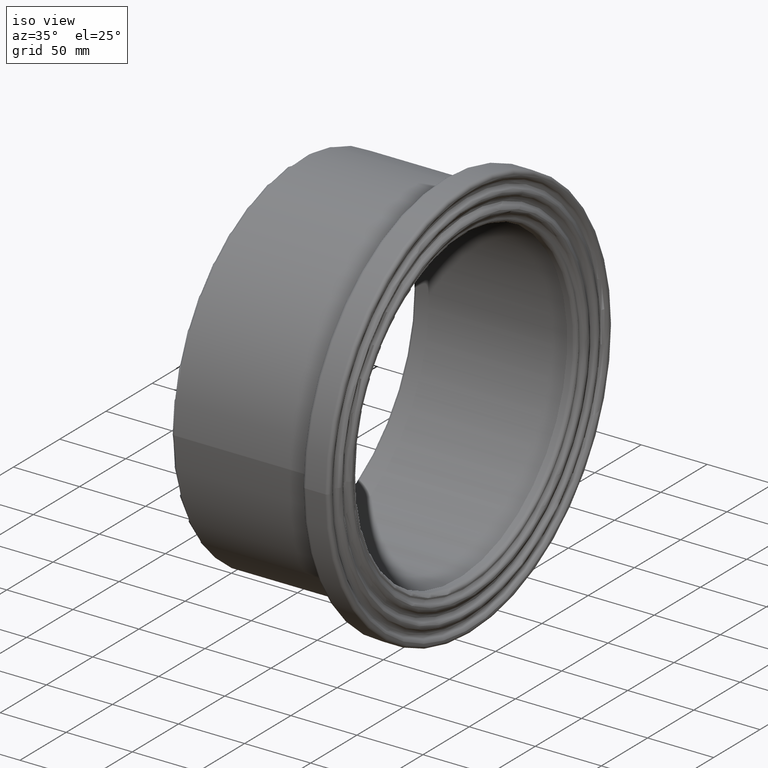
[diagram: clean part render]
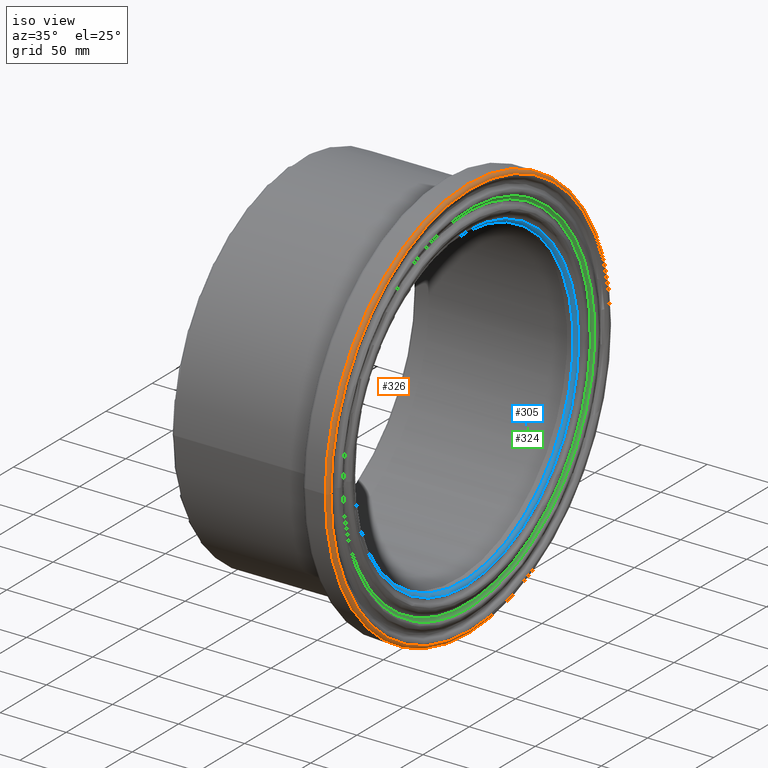
[diagram: same view with three faces highlighted in distinct colors, each labeled with its STEP entity id]
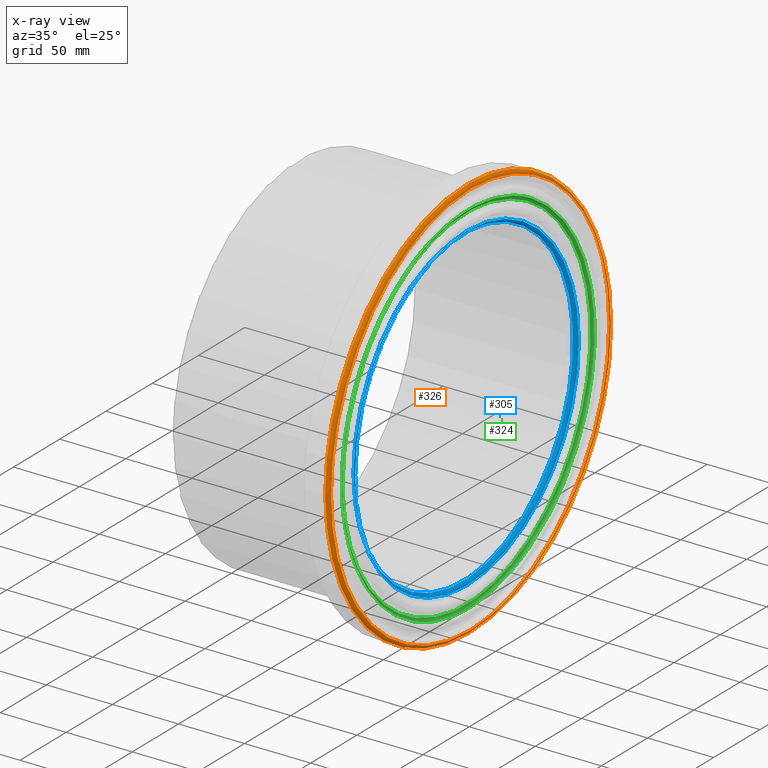
[diagram: x-ray of the same camera — body ghosted, the three highlighted faces saturated]
A machine part, iso view with three faces highlighted in distinct colors.
The next image is the same camera in x-ray (body ghosted, the three faces saturated) — at least one of them is partly hidden behind the body in this view.
Their STEP definitions:

[orange] entity #326 — the highlighted toroidal blend (fillet) surface has major radius 151 mm and minor (blend) radius 2.5 mm.
#59=FACE_BOUND('',#132,.T.);
#87=FACE_OUTER_BOUND('',#131,.T.);
#131=EDGE_LOOP('',(#281));
#132=EDGE_LOOP('',(#282));
#151=CIRCLE('',#347,151.);
#163=CIRCLE('',#370,153.5);
#177=VERTEX_POINT('',#1464);
#191=VERTEX_POINT('',#2683);
#207=EDGE_CURVE('',#177,#177,#151,.T.);
#224=EDGE_CURVE('',#191,#191,#163,.T.);
#281=ORIENTED_EDGE('',*,*,#207,.T.);
#282=ORIENTED_EDGE('',*,*,#224,.T.);
#302=TOROIDAL_SURFACE('',#369,151.,2.5);
#326=ADVANCED_FACE('',(#87,#59),#302,.T.);
#347=AXIS2_PLACEMENT_3D('',#1465,#407,#408);
#369=AXIS2_PLACEMENT_3D('',#2682,#451,#452);
#370=AXIS2_PLACEMENT_3D('',#2684,#453,#454);
#407=DIRECTION('center_axis',(-1.,0.,0.));
#408=DIRECTION('ref_axis',(0.,1.,6.12323399573677E-17));
#451=DIRECTION('center_axis',(-1.,0.,0.));
#452=DIRECTION('ref_axis',(0.,0.,1.));
#453=DIRECTION('center_axis',(1.,0.,0.));
#454=DIRECTION('ref_axis',(0.,1.,6.12323399573677E-17));
#1464=CARTESIAN_POINT('',(131.,-151.,9.24608333356252E-15));
#1465=CARTESIAN_POINT('Origin',(131.,0.,0.));
#2682=CARTESIAN_POINT('Origin',(128.5,0.,0.));
#2683=CARTESIAN_POINT('',(128.5,-153.5,-2.81974925503678E-14));
#2684=CARTESIAN_POINT('Origin',(128.5,0.,0.));

[blue] entity #305 — the highlighted toroidal blend (fillet) surface has major radius 121.25 mm and minor (blend) radius 2.5 mm.
#43=FACE_BOUND('',#95,.T.);
#66=FACE_OUTER_BOUND('',#94,.T.);
#94=EDGE_LOOP('',(#229));
#95=EDGE_LOOP('',(#230));
#145=CIRCLE('',#336,118.75);
#146=CIRCLE('',#337,121.25);
#168=VERTEX_POINT('',#477);
#169=VERTEX_POINT('',#479);
#196=EDGE_CURVE('',#168,#168,#145,.T.);
#197=EDGE_CURVE('',#169,#169,#146,.T.);
#229=ORIENTED_EDGE('',*,*,#196,.T.);
#230=ORIENTED_EDGE('',*,*,#197,.T.);
#295=TOROIDAL_SURFACE('',#335,121.25,2.5);
#305=ADVANCED_FACE('',(#66,#43),#295,.T.);
#335=AXIS2_PLACEMENT_3D('',#476,#383,#384);
#336=AXIS2_PLACEMENT_3D('',#478,#385,#386);
#337=AXIS2_PLACEMENT_3D('',#480,#387,#388);
#383=DIRECTION('center_axis',(-1.,0.,0.));
#384=DIRECTION('ref_axis',(0.,0.,1.));
#385=DIRECTION('center_axis',(-1.,0.,0.));
#386=DIRECTION('ref_axis',(0.,1.,6.12323399573676E-17));
#387=DIRECTION('center_axis',(1.,0.,0.));
#388=DIRECTION('ref_axis',(0.,1.,6.12323399573677E-17));
#476=CARTESIAN_POINT('Origin',(125.5,0.,0.));
#477=CARTESIAN_POINT('',(125.5,-118.75,7.27134036993741E-15));
#478=CARTESIAN_POINT('Origin',(125.5,0.,0.));
#479=CARTESIAN_POINT('',(128.,-121.25,-2.22732636594925E-14));
#480=CARTESIAN_POINT('Origin',(128.,0.,0.));

[green] entity #324 — the highlighted face is a freeform B-spline surface patch.
#19=B_SPLINE_SURFACE_WITH_KNOTS('',3,3,((#2313,#2314,#2315,#2316,#2317,
#2318,#2319,#2320,#2321,#2322,#2323,#2324,#2325,#2326,#2327,#2328,#2329,
#2330,#2331,#2332,#2333,#2334,#2335,#2336,#2337,#2338,#2339,#2340,#2341,
#2342,#2343,#2344,#2345,#2346,#2347,#2348,#2349,#2350,#2351,#2352,#2353,
#2354,#2355,#2356,#2357,#2358,#2359,#2360,#2361,#2362,#2363,#2364,#2365,
#2366,#2367,#2368,#2369,#2370,#2371,#2372,#2373),(#2374,#2375,#2376,#2377,
#2378,#2379,#2380,#2381,#2382,#2383,#2384,#2385,#2386,#2387,#2388,#2389,
#2390,#2391,#2392,#2393,#2394,#2395,#2396,#2397,#2398,#2399,#2400,#2401,
#2402,#2403,#2404,#2405,#2406,#2407,#2408,#2409,#2410,#2411,#2412,#2413,
#2414,#2415,#2416,#2417,#2418,#2419,#2420,#2421,#2422,#2423,#2424,#2425,
#2426,#2427,#2428,#2429,#2430,#2431,#2432,#2433,#2434),(#2435,#2436,#2437,
#2438,#2439,#2440,#2441,#2442,#2443,#2444,#2445,#2446,#2447,#2448,#2449,
#2450,#2451,#2452,#2453,#2454,#2455,#2456,#2457,#2458,#2459,#2460,#2461,
#2462,#2463,#2464,#2465,#2466,#2467,#2468,#2469,#2470,#2471,#2472,#2473,
#2474,#2475,#2476,#2477,#2478,#2479,#2480,#2481,#2482,#2483,#2484,#2485,
#2486,#2487,#2488,#2489,#2490,#2491,#2492,#2493,#2494,#2495),(#2496,#2497,
#2498,#2499,#2500,#2501,#2502,#2503,#2504,#2505,#2506,#2507,#2508,#2509,
#2510,#2511,#2512,#2513,#2514,#2515,#2516,#2517,#2518,#2519,#2520,#2521,
#2522,#2523,#2524,#2525,#2526,#2527,#2528,#2529,#2530,#2531,#2532,#2533,
#2534,#2535,#2536,#2537,#2538,#2539,#2540,#2541,#2542,#2543,#2544,#2545,
#2546,#2547,#2548,#2549,#2550,#2551,#2552,#2553,#2554,#2555,#2556),(#2557,
#2558,#2559,#2560,#2561,#2562,#2563,#2564,#2565,#2566,#2567,#2568,#2569,
#2570,#2571,#2572,#2573,#2574,#2575,#2576,#2577,#2578,#2579,#2580,#2581,
#2582,#2583,#2584,#2585,#2586,#2587,#2588,#2589,#2590,#2591,#2592,#2593,
#2594,#2595,#2596,#2597,#2598,#2599,#2600,#2601,#2602,#2603,#2604,#2605,
#2606,#2607,#2608,#2609,#2610,#2611,#2612,#2613,#2614,#2615,#2616,#2617)),
 .UNSPECIFIED.,.F.,.T.,.F.,(4,1,4),(4,1,1,1,1,1,1,1,1,1,1,1,1,1,1,1,1,1,
1,1,1,1,1,1,1,1,1,1,1,1,1,1,1,1,1,1,1,1,1,1,1,1,1,1,1,1,1,1,1,1,1,1,1,1,
1,1,1,1,4),(0.,0.571428571428571,1.),(41.8577500434216,43.3526696878296,
44.8475893322375,46.3425089766454,47.8374286210533,50.8272679098692,52.3221875542771,
53.817107198685,55.8103333912289,57.8035595837728,59.7967857763166,61.7900119688605,
62.7866250651325,63.7832381614044,65.7764643539483,68.7663036427641,69.7629167390361,
71.75614293158,72.7527560278519,73.7493691241239,75.7425953166677,77.7358215092116,
78.7324346054836,81.7222738942994,84.7121131831153,85.7087262793872,87.7019524719311,
88.2002590200671,88.947718842271,89.695178664475,92.6850179532908,95.6748572421066,
95.8617221976576,96.4223170643106,98.6646965309225,100.15961617533,101.654535819738,
102.02826573084,103.149455464146,104.644375108554,105.204969975207,106.139294752962,
106.513024664064,107.63421439737,109.129134041778,110.12574713805,111.620666782458,
113.613892975002,113.987622886104,114.548217752757,115.10881261941,116.603732263817,
119.593571552633,119.967301463735,121.088491197041,122.583410841449,124.078330485857,
124.452060396959,125.573250130265),.UNSPECIFIED.);
#32=B_SPLINE_CURVE_WITH_KNOTS('',3,(#2252,#2253,#2254,#2255,#2256,#2257,
#2258,#2259,#2260,#2261,#2262,#2263,#2264,#2265,#2266,#2267,#2268,#2269,
#2270,#2271,#2272,#2273,#2274,#2275,#2276,#2277,#2278,#2279,#2280,#2281,
#2282,#2283,#2284,#2285,#2286,#2287,#2288,#2289,#2290,#2291,#2292,#2293,
#2294,#2295,#2296,#2297,#2298,#2299,#2300,#2301,#2302,#2303,#2304,#2305,
#2306,#2307,#2308,#2309,#2310,#2311,#2312),.UNSPECIFIED.,.T.,.F.,(4,1,1,
1,1,1,1,1,1,1,1,1,1,1,1,1,1,1,1,1,1,1,1,1,1,1,1,1,1,1,1,1,1,1,1,1,1,1,1,
1,1,1,1,1,1,1,1,1,1,1,1,1,1,1,1,1,1,1,4),(-125.573250130265,-124.452060396959,
-124.078330485857,-122.583410841449,-121.088491197041,-119.967301463735,
-119.593571552633,-116.603732263817,-115.10881261941,-114.548217752757,
-113.987622886104,-113.613892975002,-111.620666782458,-110.12574713805,
-109.129134041778,-107.63421439737,-106.513024664064,-106.139294752962,
-105.204969975207,-104.644375108554,-103.149455464146,-102.02826573084,
-101.654535819738,-100.15961617533,-98.6646965309225,-96.4223170643106,
-95.8617221976576,-95.6748572421066,-92.6850179532908,-89.695178664475,
-88.947718842271,-88.2002590200671,-87.7019524719311,-85.7087262793872,
-84.7121131831153,-81.7222738942994,-78.7324346054836,-77.7358215092116,
-75.7425953166677,-73.7493691241239,-72.7527560278519,-71.75614293158,-69.7629167390361,
-68.7663036427641,-65.7764643539483,-63.7832381614044,-62.7866250651325,
-61.7900119688605,-59.7967857763166,-57.8035595837728,-55.8103333912289,
-53.817107198685,-52.3221875542771,-50.8272679098692,-47.8374286210533,
-46.3425089766454,-44.8475893322375,-43.3526696878296,-41.8577500434216),
 .UNSPECIFIED.);
#33=B_SPLINE_CURVE_WITH_KNOTS('',3,(#2620,#2621,#2622,#2623,#2624,#2625,
#2626,#2627,#2628,#2629,#2630,#2631,#2632,#2633,#2634,#2635,#2636,#2637,
#2638,#2639,#2640,#2641,#2642,#2643,#2644,#2645,#2646,#2647,#2648,#2649,
#2650,#2651,#2652,#2653,#2654,#2655,#2656,#2657,#2658,#2659,#2660,#2661,
#2662,#2663,#2664,#2665,#2666,#2667,#2668,#2669,#2670,#2671,#2672,#2673,
#2674,#2675,#2676,#2677,#2678,#2679,#2680),.UNSPECIFIED.,.T.,.F.,(4,1,1,
1,1,1,1,1,1,1,1,1,1,1,1,1,1,1,1,1,1,1,1,1,1,1,1,1,1,1,1,1,1,1,1,1,1,1,1,
1,1,1,1,1,1,1,1,1,1,1,1,1,1,1,1,1,1,1,4),(41.8577500434216,43.3526696878296,
44.8475893322375,46.3425089766454,47.8374286210533,50.8272679098692,52.3221875542771,
53.817107198685,55.8103333912289,57.8035595837728,59.7967857763166,61.7900119688605,
62.7866250651325,63.7832381614044,65.7764643539483,68.7663036427641,69.7629167390361,
71.75614293158,72.7527560278519,73.7493691241239,75.7425953166677,77.7358215092116,
78.7324346054836,81.7222738942994,84.7121131831153,85.7087262793872,87.7019524719311,
88.2002590200671,88.947718842271,89.695178664475,92.6850179532908,95.6748572421066,
95.8617221976576,96.4223170643106,98.6646965309225,100.15961617533,101.654535819738,
102.02826573084,103.149455464146,104.644375108554,105.204969975207,106.139294752962,
106.513024664064,107.63421439737,109.129134041778,110.12574713805,111.620666782458,
113.613892975002,113.987622886104,114.548217752757,115.10881261941,116.603732263817,
119.593571552633,119.967301463735,121.088491197041,122.583410841449,124.078330485857,
124.452060396959,125.573250130265),.UNSPECIFIED.);
#85=FACE_OUTER_BOUND('',#128,.T.);
#128=EDGE_LOOP('',(#275,#276,#277,#278));
#162=CIRCLE('',#367,2.50000000000001);
#189=VERTEX_POINT('',#2251);
#190=VERTEX_POINT('',#2618);
#221=EDGE_CURVE('',#189,#189,#32,.T.);
#222=EDGE_CURVE('',#190,#189,#162,.T.);
#223=EDGE_CURVE('',#190,#190,#33,.T.);
#275=ORIENTED_EDGE('',*,*,#222,.T.);
#276=ORIENTED_EDGE('',*,*,#221,.T.);
#277=ORIENTED_EDGE('',*,*,#222,.F.);
#278=ORIENTED_EDGE('',*,*,#223,.T.);
#324=ADVANCED_FACE('',(#85),#19,.T.);
#367=AXIS2_PLACEMENT_3D('',#2619,#447,#448);
#447=DIRECTION('center_axis',(0.,0.00081182891062679,-0.999999670466856));
#448=DIRECTION('ref_axis',(-0.399999999999997,-0.916514836969054,-0.000744053486860162));
#2251=CARTESIAN_POINT('',(128.,-134.042380133623,-0.108819515300807));
#2252=CARTESIAN_POINT('Ctrl Pts',(128.,-134.042396806544,-0.110004775458605));
#2253=CARTESIAN_POINT('Ctrl Pts',(128.,-134.045770195486,3.63596688620978));
#2254=CARTESIAN_POINT('Ctrl Pts',(128.,-133.840932653224,8.61650060382999));
#2255=CARTESIAN_POINT('Ctrl Pts',(128.,-132.87062718772,18.5981948267424));
#2256=CARTESIAN_POINT('Ctrl Pts',(128.,-130.985447689726,29.7729122756928));
#2257=CARTESIAN_POINT('Ctrl Pts',(128.,-127.155110948706,43.0976685465278));
#2258=CARTESIAN_POINT('Ctrl Pts',(128.,-123.460639573746,52.3900811576101));
#2259=CARTESIAN_POINT('Ctrl Pts',(128.,-117.175105432899,65.9713295033879));
#2260=CARTESIAN_POINT('Ctrl Pts',(128.,-108.412795269691,79.9560669111456));
#2261=CARTESIAN_POINT('Ctrl Pts',(128.,-97.1105871375329,92.5972989510736));
#2262=CARTESIAN_POINT('Ctrl Pts',(128.,-90.8216059421236,98.6377260264684));
#2263=CARTESIAN_POINT('Ctrl Pts',(128.,-87.0704552680871,101.948550305349));
#2264=CARTESIAN_POINT('Ctrl Pts',(128.,-79.4869613414157,108.185310942699));
#2265=CARTESIAN_POINT('Ctrl Pts',(128.,-68.7119140789402,115.545804460043));
#2266=CARTESIAN_POINT('Ctrl Pts',(128.,-55.2412775281228,122.345193450153));
#2267=CARTESIAN_POINT('Ctrl Pts',(128.,-42.8727580370688,127.208055099489));
#2268=CARTESIAN_POINT('Ctrl Pts',(128.,-31.1929405433235,130.588536608182));
#2269=CARTESIAN_POINT('Ctrl Pts',(128.,-21.28485606209,132.418885331816));
#2270=CARTESIAN_POINT('Ctrl Pts',(128.,-13.1829912426797,133.450654100185));
#2271=CARTESIAN_POINT('Ctrl Pts',(128.,-6.91778686165765,133.93527681819));
#2272=CARTESIAN_POINT('Ctrl Pts',(128.,3.06193922022791,134.147893750257));
#2273=CARTESIAN_POINT('Ctrl Pts',(128.,13.6755773685519,133.561678807177));
#2274=CARTESIAN_POINT('Ctrl Pts',(128.,23.6365828512167,132.019737102123));
#2275=CARTESIAN_POINT('Ctrl Pts',(128.,33.4723418236208,129.925062798654));
#2276=CARTESIAN_POINT('Ctrl Pts',(128.,44.3729614263372,126.780082946195));
#2277=CARTESIAN_POINT('Ctrl Pts',(128.,60.5002062033004,120.107980033134));
#2278=CARTESIAN_POINT('Ctrl Pts',(128.,73.0193004211953,112.742308750468));
#2279=CARTESIAN_POINT('Ctrl Pts',(128.,81.1022204579567,106.748106291229));
#2280=CARTESIAN_POINT('Ctrl Pts',(128.,90.975198043422,98.978631353995));
#2281=CARTESIAN_POINT('Ctrl Pts',(128.,105.593111445086,84.3914026861268));
#2282=CARTESIAN_POINT('Ctrl Pts',(128.,117.793961325987,65.0130442939763));
#2283=CARTESIAN_POINT('Ctrl Pts',(128.,123.894930341947,51.3334492799566));
#2284=CARTESIAN_POINT('Ctrl Pts',(128.,126.274183596108,45.1181891306844));
#2285=CARTESIAN_POINT('Ctrl Pts',(128.,129.672172135462,34.805445015328));
#2286=CARTESIAN_POINT('Ctrl Pts',(128.,132.300385889501,23.3025404323761));
#2287=CARTESIAN_POINT('Ctrl Pts',(128.,134.540041393079,3.34770823180396));
#2288=CARTESIAN_POINT('Ctrl Pts',(128.,133.6671782023,-20.0488374407319));
#2289=CARTESIAN_POINT('Ctrl Pts',(128.,127.617528001759,-42.7311712646745));
#2290=CARTESIAN_POINT('Ctrl Pts',(128.,119.660231237079,-61.0411926292766));
#2291=CARTESIAN_POINT('Ctrl Pts',(128.,111.323320200756,-75.5676429604876));
#2292=CARTESIAN_POINT('Ctrl Pts',(128.,100.829195686642,-88.767463041164));
#2293=CARTESIAN_POINT('Ctrl Pts',(128.,91.4120856759479,-98.204239185521));
#2294=CARTESIAN_POINT('Ctrl Pts',(128.,81.3368445823764,-106.910395544264));
#2295=CARTESIAN_POINT('Ctrl Pts',(128.,70.2237995046921,-114.52397053007));
#2296=CARTESIAN_POINT('Ctrl Pts',(128.,52.4361812606862,-123.946000474479));
#2297=CARTESIAN_POINT('Ctrl Pts',(128.,33.5230036341493,-130.603890048496));
#2298=CARTESIAN_POINT('Ctrl Pts',(128.,13.5273673315771,-133.656190189087));
#2299=CARTESIAN_POINT('Ctrl Pts',(128.,0.155140283754767,-134.164901730926));
#2300=CARTESIAN_POINT('Ctrl Pts',(128.,-13.1245988394816,-133.689515016061));
#2301=CARTESIAN_POINT('Ctrl Pts',(128.,-29.7597412024202,-131.219226065137));
#2302=CARTESIAN_POINT('Ctrl Pts',(128.,-49.044247412749,-125.28099455662));
#2303=CARTESIAN_POINT('Ctrl Pts',(128.,-67.0542090644284,-116.64020742229));
#2304=CARTESIAN_POINT('Ctrl Pts',(128.,-82.4064222522247,-106.219534483969));
#2305=CARTESIAN_POINT('Ctrl Pts',(128.,-94.8869711391003,-95.064187400342));
#2306=CARTESIAN_POINT('Ctrl Pts',(128.,-108.223523013044,-80.206311024766));
#2307=CARTESIAN_POINT('Ctrl Pts',(128.,-119.076680496132,-62.9759832380937));
#2308=CARTESIAN_POINT('Ctrl Pts',(128.,-126.724452921231,-44.519849657769));
#2309=CARTESIAN_POINT('Ctrl Pts',(128.,-130.920937517338,-30.0644831455729));
#2310=CARTESIAN_POINT('Ctrl Pts',(128.,-133.470675532955,-15.1314785277439));
#2311=CARTESIAN_POINT('Ctrl Pts',(128.,-134.037898954623,-5.10463365768324));
#2312=CARTESIAN_POINT('Ctrl Pts',(128.,-134.042396806544,-0.110004775458676));
#2313=CARTESIAN_POINT('Ctrl Pts',(128.,-134.042396806544,-0.110004775458605));
#2314=CARTESIAN_POINT('Ctrl Pts',(128.,-134.037898954623,-5.10463365768317));
#2315=CARTESIAN_POINT('Ctrl Pts',(128.,-133.470675532955,-15.1314785277439));
#2316=CARTESIAN_POINT('Ctrl Pts',(128.,-130.920937517338,-30.0644831455729));
#2317=CARTESIAN_POINT('Ctrl Pts',(128.,-126.724452921231,-44.519849657769));
#2318=CARTESIAN_POINT('Ctrl Pts',(128.,-119.076680496132,-62.9759832380937));
#2319=CARTESIAN_POINT('Ctrl Pts',(128.,-108.223523013044,-80.206311024766));
#2320=CARTESIAN_POINT('Ctrl Pts',(128.,-94.8869711391003,-95.064187400342));
#2321=CARTESIAN_POINT('Ctrl Pts',(128.,-82.4064222522247,-106.219534483969));
#2322=CARTESIAN_POINT('Ctrl Pts',(128.,-67.0542090644284,-116.64020742229));
#2323=CARTESIAN_POINT('Ctrl Pts',(128.,-49.044247412749,-125.28099455662));
#2324=CARTESIAN_POINT('Ctrl Pts',(128.,-29.7597412024202,-131.219226065137));
#2325=CARTESIAN_POINT('Ctrl Pts',(128.,-13.1245988394816,-133.689515016061));
#2326=CARTESIAN_POINT('Ctrl Pts',(128.,0.155140283754767,-134.164901730926));
#2327=CARTESIAN_POINT('Ctrl Pts',(128.,13.5273673315771,-133.656190189087));
#2328=CARTESIAN_POINT('Ctrl Pts',(128.,33.5230036341493,-130.603890048496));
#2329=CARTESIAN_POINT('Ctrl Pts',(128.,52.4361812606862,-123.946000474479));
#2330=CARTESIAN_POINT('Ctrl Pts',(128.,70.2237995046921,-114.52397053007));
#2331=CARTESIAN_POINT('Ctrl Pts',(128.,81.3368445823764,-106.910395544264));
#2332=CARTESIAN_POINT('Ctrl Pts',(128.,91.4120856759479,-98.204239185521));
#2333=CARTESIAN_POINT('Ctrl Pts',(128.,100.829195686642,-88.767463041164));
#2334=CARTESIAN_POINT('Ctrl Pts',(128.,111.323320200756,-75.5676429604876));
#2335=CARTESIAN_POINT('Ctrl Pts',(128.,119.660231237079,-61.0411926292766));
#2336=CARTESIAN_POINT('Ctrl Pts',(128.,127.617528001759,-42.7311712646745));
#2337=CARTESIAN_POINT('Ctrl Pts',(128.,133.6671782023,-20.0488374407319));
#2338=CARTESIAN_POINT('Ctrl Pts',(128.,134.540041393079,3.34770823180396));
#2339=CARTESIAN_POINT('Ctrl Pts',(128.,132.300385889501,23.3025404323761));
#2340=CARTESIAN_POINT('Ctrl Pts',(128.,129.672172135462,34.805445015328));
#2341=CARTESIAN_POINT('Ctrl Pts',(128.,126.274183596108,45.1181891306844));
#2342=CARTESIAN_POINT('Ctrl Pts',(128.,123.894930341947,51.3334492799566));
#2343=CARTESIAN_POINT('Ctrl Pts',(128.,117.793961325987,65.0130442939763));
#2344=CARTESIAN_POINT('Ctrl Pts',(128.,105.593111445086,84.3914026861268));
#2345=CARTESIAN_POINT('Ctrl Pts',(128.,90.975198043422,98.978631353995));
#2346=CARTESIAN_POINT('Ctrl Pts',(128.,81.1022204579567,106.748106291229));
#2347=CARTESIAN_POINT('Ctrl Pts',(128.,73.0193004211953,112.742308750468));
#2348=CARTESIAN_POINT('Ctrl Pts',(128.,60.5002062033004,120.107980033134));
#2349=CARTESIAN_POINT('Ctrl Pts',(128.,44.3729614263372,126.780082946195));
#2350=CARTESIAN_POINT('Ctrl Pts',(128.,33.4723418236208,129.925062798654));
#2351=CARTESIAN_POINT('Ctrl Pts',(128.,23.6365828512167,132.019737102123));
#2352=CARTESIAN_POINT('Ctrl Pts',(128.,13.6755773685519,133.561678807177));
#2353=CARTESIAN_POINT('Ctrl Pts',(128.,3.06193922022791,134.147893750257));
#2354=CARTESIAN_POINT('Ctrl Pts',(128.,-6.91778686165765,133.93527681819));
#2355=CARTESIAN_POINT('Ctrl Pts',(128.,-13.1829912426797,133.450654100185));
#2356=CARTESIAN_POINT('Ctrl Pts',(128.,-21.28485606209,132.418885331816));
#2357=CARTESIAN_POINT('Ctrl Pts',(128.,-31.1929405433235,130.588536608182));
#2358=CARTESIAN_POINT('Ctrl Pts',(128.,-42.8727580370688,127.208055099489));
#2359=CARTESIAN_POINT('Ctrl Pts',(128.,-55.2412775281228,122.345193450153));
#2360=CARTESIAN_POINT('Ctrl Pts',(128.,-68.7119140789402,115.545804460043));
#2361=CARTESIAN_POINT('Ctrl Pts',(128.,-79.4869613414157,108.185310942699));
#2362=CARTESIAN_POINT('Ctrl Pts',(128.,-87.0704552680871,101.948550305349));
#2363=CARTESIAN_POINT('Ctrl Pts',(128.,-90.8216059421236,98.6377260264684));
#2364=CARTESIAN_POINT('Ctrl Pts',(128.,-97.1105871375329,92.5972989510736));
#2365=CARTESIAN_POINT('Ctrl Pts',(128.,-108.412795269691,79.9560669111456));
#2366=CARTESIAN_POINT('Ctrl Pts',(128.,-117.175105432899,65.9713295033879));
#2367=CARTESIAN_POINT('Ctrl Pts',(128.,-123.460639573746,52.3900811576101));
#2368=CARTESIAN_POINT('Ctrl Pts',(128.,-127.155110948706,43.0976685465278));
#2369=CARTESIAN_POINT('Ctrl Pts',(128.,-130.985447689726,29.7729122756928));
#2370=CARTESIAN_POINT('Ctrl Pts',(128.,-132.87062718772,18.5981948267424));
#2371=CARTESIAN_POINT('Ctrl Pts',(128.,-133.840932653224,8.61650060382999));
#2372=CARTESIAN_POINT('Ctrl Pts',(128.,-134.045770195486,3.63596688620978));
#2373=CARTESIAN_POINT('Ctrl Pts',(128.,-134.042396806544,-0.110004775458605));
#2374=CARTESIAN_POINT('Ctrl Pts',(128.,-134.594434812956,-0.110461162633312));
#2375=CARTESIAN_POINT('Ctrl Pts',(128.,-134.589918405156,-5.12565996918277));
#2376=CARTESIAN_POINT('Ctrl Pts',(128.,-134.020359307645,-15.1937938875339));
#2377=CARTESIAN_POINT('Ctrl Pts',(128.,-131.460120665862,-30.1882976234241));
#2378=CARTESIAN_POINT('Ctrl Pts',(128.,-127.246353754527,-44.7031979749576));
#2379=CARTESIAN_POINT('Ctrl Pts',(128.,-119.567081339409,-63.2353473507036));
#2380=CARTESIAN_POINT('Ctrl Pts',(128.,-108.669231992758,-80.5366269645552));
#2381=CARTESIAN_POINT('Ctrl Pts',(128.,-95.2777514225551,-95.4556995337113));
#2382=CARTESIAN_POINT('Ctrl Pts',(128.,-82.7458021017108,-106.656987931511));
#2383=CARTESIAN_POINT('Ctrl Pts',(128.,-67.3303665957968,-117.120575388676));
#2384=CARTESIAN_POINT('Ctrl Pts',(128.,-49.246226460218,-125.796951628199));
#2385=CARTESIAN_POINT('Ctrl Pts',(128.,-29.8823033675171,-131.759636543865));
#2386=CARTESIAN_POINT('Ctrl Pts',(128.,-13.1786522733384,-134.240100292508));
#2387=CARTESIAN_POINT('Ctrl Pts',(128.,0.155777692276861,-134.717443890255));
#2388=CARTESIAN_POINT('Ctrl Pts',(128.,13.5830795875951,-134.206638301411));
#2389=CARTESIAN_POINT('Ctrl Pts',(128.,33.6610687771271,-131.141764963593));
#2390=CARTESIAN_POINT('Ctrl Pts',(128.,52.6521270511417,-124.456460853311));
#2391=CARTESIAN_POINT('Ctrl Pts',(128.,70.513014335432,-114.995620726516));
#2392=CARTESIAN_POINT('Ctrl Pts',(128.,81.671813216076,-107.350699303088));
#2393=CARTESIAN_POINT('Ctrl Pts',(128.,91.7885592806251,-98.6086789230373));
#2394=CARTESIAN_POINT('Ctrl Pts',(128.,101.244446957129,-89.1330439382535));
#2395=CARTESIAN_POINT('Ctrl Pts',(128.,111.78179274693,-75.8788586041971));
#2396=CARTESIAN_POINT('Ctrl Pts',(128.,120.15303776602,-61.2925851655418));
#2397=CARTESIAN_POINT('Ctrl Pts',(128.,128.143106685282,-42.9071508869083));
#2398=CARTESIAN_POINT('Ctrl Pts',(128.,134.217670632058,-20.1314125883368));
#2399=CARTESIAN_POINT('Ctrl Pts',(128.,135.094128797481,3.36150128582284));
#2400=CARTESIAN_POINT('Ctrl Pts',(128.,132.845250430268,23.3985044600311));
#2401=CARTESIAN_POINT('Ctrl Pts',(128.,130.206211461743,34.9487882996147));
#2402=CARTESIAN_POINT('Ctrl Pts',(128.,126.79423060482,45.3039999181129));
#2403=CARTESIAN_POINT('Ctrl Pts',(128.,124.40517614348,51.5448618411736));
#2404=CARTESIAN_POINT('Ctrl Pts',(128.,118.279082037487,65.2807948627832));
#2405=CARTESIAN_POINT('Ctrl Pts',(128.,106.02798409988,84.7389567005983));
#2406=CARTESIAN_POINT('Ctrl Pts',(128.,91.3498703651655,99.38626345237));
#2407=CARTESIAN_POINT('Ctrl Pts',(128.,81.4362299438716,107.18773611189));
#2408=CARTESIAN_POINT('Ctrl Pts',(128.,73.3200138837552,113.206630246278));
#2409=CARTESIAN_POINT('Ctrl Pts',(128.,60.7493775014278,120.60262645878));
#2410=CARTESIAN_POINT('Ctrl Pts',(128.,44.5557014273403,127.302214262235));
#2411=CARTESIAN_POINT('Ctrl Pts',(128.,33.6101987928727,130.460142431061));
#2412=CARTESIAN_POINT('Ctrl Pts',(128.,23.7339267054232,132.563445663145));
#2413=CARTESIAN_POINT('Ctrl Pts',(128.,13.7318979034324,134.111736330377));
#2414=CARTESIAN_POINT('Ctrl Pts',(128.,3.07455363455794,134.700366894082));
#2415=CARTESIAN_POINT('Ctrl Pts',(128.,-6.94628173964139,134.486873061302));
#2416=CARTESIAN_POINT('Ctrl Pts',(128.,-13.2372814995961,134.000255867062));
#2417=CARTESIAN_POINT('Ctrl Pts',(128.,-21.3725183134484,132.964236409687));
#2418=CARTESIAN_POINT('Ctrl Pts',(128.,-31.3214070310093,131.126350098631));
#2419=CARTESIAN_POINT('Ctrl Pts',(128.,-43.0493200773614,127.731948057067));
#2420=CARTESIAN_POINT('Ctrl Pts',(128.,-55.4687860079274,122.849056652159));
#2421=CARTESIAN_POINT('Ctrl Pts',(128.,-68.9948967821989,116.021665549252));
#2422=CARTESIAN_POINT('Ctrl Pts',(128.,-79.8143169506371,108.630861221665));
#2423=CARTESIAN_POINT('Ctrl Pts',(128.,-87.429040667454,102.368417337859));
#2424=CARTESIAN_POINT('Ctrl Pts',(128.,-91.1956457158025,99.0439521418355));
#2425=CARTESIAN_POINT('Ctrl Pts',(128.,-97.5105289723043,92.9786483514629));
#2426=CARTESIAN_POINT('Ctrl Pts',(128.,-108.859282288944,80.285350752476));
#2427=CARTESIAN_POINT('Ctrl Pts',(128.,-117.65767389293,66.2430340602316));
#2428=CARTESIAN_POINT('Ctrl Pts',(128.,-123.969098394949,52.605841597043));
#2429=CARTESIAN_POINT('Ctrl Pts',(128.,-127.678784921276,43.2751617764169));
#2430=CARTESIAN_POINT('Ctrl Pts',(128.,-131.524896052128,29.895526370397));
#2431=CARTESIAN_POINT('Ctrl Pts',(128.,-133.417839007921,18.6747937005199));
#2432=CARTESIAN_POINT('Ctrl Pts',(128.,-134.39214117089,8.6519856343586));
#2433=CARTESIAN_POINT('Ctrl Pts',(128.,-134.597822118806,3.65093794227874));
#2434=CARTESIAN_POINT('Ctrl Pts',(128.,-134.594434812956,-0.110461162633312));
#2435=CARTESIAN_POINT('Ctrl Pts',(128.332455574358,-135.557291704872,-0.111247189840472));
#2436=CARTESIAN_POINT('Ctrl Pts',(128.332455574358,-135.552743027793,-5.16232338907633));
#2437=CARTESIAN_POINT('Ctrl Pts',(128.332455574358,-134.979108978417,-15.3024890547301));
#2438=CARTESIAN_POINT('Ctrl Pts',(128.332455574358,-132.40055477579,-30.4042608440699));
#2439=CARTESIAN_POINT('Ctrl Pts',(128.332455574358,-128.156643045159,-45.0229960042833));
#2440=CARTESIAN_POINT('Ctrl Pts',(128.332455574358,-120.422439340079,-63.6877120571345));
#2441=CARTESIAN_POINT('Ctrl Pts',(128.332455574358,-109.446622335721,-81.1127725529709));
#2442=CARTESIAN_POINT('Ctrl Pts',(128.332455574358,-95.9593468466515,-96.1385654473985));
#2443=CARTESIAN_POINT('Ctrl Pts',(128.332455574358,-83.3377478452992,-107.419986080706));
#2444=CARTESIAN_POINT('Ctrl Pts',(128.332455574358,-67.8120289579411,-117.958429842747));
#2445=CARTESIAN_POINT('Ctrl Pts',(128.332455574358,-49.5985273426442,-126.696871044211));
#2446=CARTESIAN_POINT('Ctrl Pts',(128.332455574358,-30.0960741594777,-132.70221474188));
#2447=CARTESIAN_POINT('Ctrl Pts',(128.332455574358,-13.272927619847,-135.200421642209));
#2448=CARTESIAN_POINT('Ctrl Pts',(128.332455574358,0.156893989499437,-135.681181222308));
#2449=CARTESIAN_POINT('Ctrl Pts',(128.332455574358,13.6802480280183,-135.166720171433));
#2450=CARTESIAN_POINT('Ctrl Pts',(128.332455574358,33.9018664367352,-132.079924772938));
#2451=CARTESIAN_POINT('Ctrl Pts',(128.332455574358,53.028796124736,-125.346789056075));
#2452=CARTESIAN_POINT('Ctrl Pts',(128.332455574358,71.0174399676076,-115.818276626604));
#2453=CARTESIAN_POINT('Ctrl Pts',(128.332455574358,82.2560837599928,-108.11865374301));
#2454=CARTESIAN_POINT('Ctrl Pts',(128.332455574358,92.4451885497659,-99.3141059313359));
#2455=CARTESIAN_POINT('Ctrl Pts',(128.332455574358,101.968728434023,-89.770677698857));
#2456=CARTESIAN_POINT('Ctrl Pts',(128.332455574358,112.58145285413,-76.4216792121673));
#2457=CARTESIAN_POINT('Ctrl Pts',(128.332455574358,121.012584558059,-61.7310560211934));
#2458=CARTESIAN_POINT('Ctrl Pts',(128.332455574358,129.059811354838,-43.2141032102031));
#2459=CARTESIAN_POINT('Ctrl Pts',(128.332455574358,135.177832595251,-20.2754200344413));
#2460=CARTESIAN_POINT('Ctrl Pts',(128.332455574358,136.060560499243,3.3855412826107));
#2461=CARTESIAN_POINT('Ctrl Pts',(128.332455574358,133.795593063584,23.5658978224865));
#2462=CARTESIAN_POINT('Ctrl Pts',(128.332455574358,131.137676560935,35.1988023111507));
#2463=CARTESIAN_POINT('Ctrl Pts',(128.332455574358,127.701284815674,45.6280980967998));
#2464=CARTESIAN_POINT('Ctrl Pts',(128.332455574358,125.295142786596,51.9135994845505));
#2465=CARTESIAN_POINT('Ctrl Pts',(128.332455574358,119.125222743873,65.7477959010921));
#2466=CARTESIAN_POINT('Ctrl Pts',(128.332455574358,106.786483682979,85.3451619360978));
#2467=CARTESIAN_POINT('Ctrl Pts',(128.332455574358,92.0033638747935,100.097249217198));
#2468=CARTESIAN_POINT('Ctrl Pts',(128.332455574358,82.0188062659379,107.954531719629));
#2469=CARTESIAN_POINT('Ctrl Pts',(128.332455574358,73.8445380396575,114.016477035878));
#2470=CARTESIAN_POINT('Ctrl Pts',(128.332455574358,61.183953929348,121.465394638461));
#2471=CARTESIAN_POINT('Ctrl Pts',(128.332455574358,44.8744485230619,128.212901442812));
#2472=CARTESIAN_POINT('Ctrl Pts',(128.332455574358,33.8506319511838,131.393425587432));
#2473=CARTESIAN_POINT('Ctrl Pts',(128.332455574358,23.9037144546826,133.511772532207));
#2474=CARTESIAN_POINT('Ctrl Pts',(128.332455574358,13.8301335913998,135.071140989537));
#2475=CARTESIAN_POINT('Ctrl Pts',(128.332455574358,3.09654304425006,135.663980772647));
#2476=CARTESIAN_POINT('Ctrl Pts',(128.332455574358,-6.99596782465762,135.448961235171));
#2477=CARTESIAN_POINT('Ctrl Pts',(128.332455574358,-13.331980844552,134.95886116182));
#2478=CARTESIAN_POINT('Ctrl Pts',(128.332455574358,-21.5254084606889,133.915432103911));
#2479=CARTESIAN_POINT('Ctrl Pts',(128.332455574358,-31.5454705068667,132.064397372957));
#2480=CARTESIAN_POINT('Ctrl Pts',(128.332455574358,-43.3572903096786,128.645710593129));
#2481=CARTESIAN_POINT('Ctrl Pts',(128.332455574358,-55.8655919996206,123.727891418809));
#2482=CARTESIAN_POINT('Ctrl Pts',(128.332455574358,-69.4884691702927,116.851658293209));
#2483=CARTESIAN_POINT('Ctrl Pts',(128.332455574358,-80.3852925162464,109.407978731855));
#2484=CARTESIAN_POINT('Ctrl Pts',(128.332455574358,-88.054492609322,103.10073213877));
#2485=CARTESIAN_POINT('Ctrl Pts',(128.332455574358,-91.8480359346975,99.7524915998606));
#2486=CARTESIAN_POINT('Ctrl Pts',(128.332455574358,-98.2080923466505,93.6437979534417));
#2487=CARTESIAN_POINT('Ctrl Pts',(128.332455574358,-109.638034029111,80.859700643477));
#2488=CARTESIAN_POINT('Ctrl Pts',(128.332455574358,-118.49937365326,66.7169094692075));
#2489=CARTESIAN_POINT('Ctrl Pts',(128.332455574358,-124.855943443941,52.982173916003));
#2490=CARTESIAN_POINT('Ctrl Pts',(128.332455574358,-128.59216831785,43.584741468437));
#2491=CARTESIAN_POINT('Ctrl Pts',(128.332455574358,-132.465794130207,30.1093946519841));
#2492=CARTESIAN_POINT('Ctrl Pts',(128.332455574358,-134.372279297828,18.8083833045187));
#2493=CARTESIAN_POINT('Ctrl Pts',(128.332455574358,-135.353550629052,8.71388118362897));
#2494=CARTESIAN_POINT('Ctrl Pts',(128.332455574358,-135.56070321268,3.67705995958639));
#2495=CARTESIAN_POINT('Ctrl Pts',(128.332455574358,-135.557291704872,-0.111247189840472));
#2496=CARTESIAN_POINT('Ctrl Pts',(129.120536716283,-136.168073070651,-0.111751807306495));
#2497=CARTESIAN_POINT('Ctrl Pts',(129.120536716283,-136.163503866331,-5.18558680091462));
#2498=CARTESIAN_POINT('Ctrl Pts',(129.120536716283,-135.587285560839,-15.3714356916707));
#2499=CARTESIAN_POINT('Ctrl Pts',(129.120536716282,-132.997113324177,-30.5412509034174));
#2500=CARTESIAN_POINT('Ctrl Pts',(129.120536716283,-128.734080194176,-45.2258548965548));
#2501=CARTESIAN_POINT('Ctrl Pts',(129.120536716282,-120.965024881489,-63.9746750865532));
#2502=CARTESIAN_POINT('Ctrl Pts',(129.120536716283,-109.939759711332,-81.4782384490292));
#2503=CARTESIAN_POINT('Ctrl Pts',(129.120536716283,-96.391710830593,-96.5717389580898));
#2504=CARTESIAN_POINT('Ctrl Pts',(129.120536716283,-83.7132418571064,-107.903989672069));
#2505=CARTESIAN_POINT('Ctrl Pts',(129.120536716283,-68.1175726521423,-118.4899147453));
#2506=CARTESIAN_POINT('Ctrl Pts',(129.120536716283,-49.8219997424223,-127.267731849717));
#2507=CARTESIAN_POINT('Ctrl Pts',(129.120536716283,-30.2316783719371,-133.30013133659));
#2508=CARTESIAN_POINT('Ctrl Pts',(129.120536716283,-13.3327328468288,-135.80959563312));
#2509=CARTESIAN_POINT('Ctrl Pts',(129.120536716283,0.157599377751208,-136.292520425777));
#2510=CARTESIAN_POINT('Ctrl Pts',(129.120536716283,13.741888588713,-135.775742394306));
#2511=CARTESIAN_POINT('Ctrl Pts',(129.120536716283,34.0546228847205,-132.675036127574));
#2512=CARTESIAN_POINT('Ctrl Pts',(129.120536716283,53.2677217480881,-125.911568123291));
#2513=CARTESIAN_POINT('Ctrl Pts',(129.120536716283,71.3374300407528,-116.34011631518));
#2514=CARTESIAN_POINT('Ctrl Pts',(129.120536716283,82.626697779357,-108.605810444132));
#2515=CARTESIAN_POINT('Ctrl Pts',(129.120536716283,92.8617230320031,-99.7615831293986));
#2516=CARTESIAN_POINT('Ctrl Pts',(129.120536716283,102.428167544203,-90.1751604746259));
#2517=CARTESIAN_POINT('Ctrl Pts',(129.120536716283,113.08871224918,-76.7660119632098));
#2518=CARTESIAN_POINT('Ctrl Pts',(129.120536716283,121.557831538379,-62.0091995412659));
#2519=CARTESIAN_POINT('Ctrl Pts',(129.120536716283,129.641317738317,-43.4088095146356));
#2520=CARTESIAN_POINT('Ctrl Pts',(129.120536716283,135.786903945043,-20.3667815175875));
#2521=CARTESIAN_POINT('Ctrl Pts',(129.120536716283,136.673609352482,3.40080148935013));
#2522=CARTESIAN_POINT('Ctrl Pts',(129.120536716283,134.398437541919,23.6720740327666));
#2523=CARTESIAN_POINT('Ctrl Pts',(129.120536716283,131.728544016465,35.3573989015621));
#2524=CARTESIAN_POINT('Ctrl Pts',(129.120536716283,128.276670815545,45.8336816674125));
#2525=CARTESIAN_POINT('Ctrl Pts',(129.120536716283,125.859684868249,52.1475086647718));
#2526=CARTESIAN_POINT('Ctrl Pts',(129.120536716282,119.661966025262,66.044038099031));
#2527=CARTESIAN_POINT('Ctrl Pts',(129.120536716283,107.26763194907,85.7297000151416));
#2528=CARTESIAN_POINT('Ctrl Pts',(129.120536716283,92.4179055976371,100.548258169158));
#2529=CARTESIAN_POINT('Ctrl Pts',(129.120536716283,82.3883583600972,108.440943324756));
#2530=CARTESIAN_POINT('Ctrl Pts',(129.120536716283,74.1772517667699,114.530207276549));
#2531=CARTESIAN_POINT('Ctrl Pts',(129.120536716283,61.4596391698593,122.012677712864));
#2532=CARTESIAN_POINT('Ctrl Pts',(129.120536716283,45.0766347046972,128.790593462897));
#2533=CARTESIAN_POINT('Ctrl Pts',(129.120536716283,34.0031580261751,131.985444169458));
#2534=CARTESIAN_POINT('Ctrl Pts',(129.120536716283,24.0114169099751,134.113338036954));
#2535=CARTESIAN_POINT('Ctrl Pts',(129.120536716283,13.8924473697995,135.679731195558));
#2536=CARTESIAN_POINT('Ctrl Pts',(129.120536716283,3.11049936353761,136.27524351351));
#2537=CARTESIAN_POINT('Ctrl Pts',(129.120536716283,-7.02749441593072,136.05925388906));
#2538=CARTESIAN_POINT('Ctrl Pts',(129.120536716283,-13.3920484614619,135.566946964996));
#2539=CARTESIAN_POINT('Ctrl Pts',(129.120536716283,-21.6223987051304,134.518815041616));
#2540=CARTESIAN_POINT('Ctrl Pts',(129.120536716283,-31.6876071456411,132.65944058588));
#2541=CARTESIAN_POINT('Ctrl Pts',(129.120536716283,-43.5526410774161,129.225351805442));
#2542=CARTESIAN_POINT('Ctrl Pts',(129.120536716283,-56.1173096957581,124.285371735878));
#2543=CARTESIAN_POINT('Ctrl Pts',(129.120536716283,-69.8015645046408,117.378156704245));
#2544=CARTESIAN_POINT('Ctrl Pts',(129.120536716283,-80.7474828447827,109.900940652028));
#2545=CARTESIAN_POINT('Ctrl Pts',(129.120536716283,-88.4512361410353,103.565277599219));
#2546=CARTESIAN_POINT('Ctrl Pts',(129.120536716283,-92.2618777985841,100.201945156132));
#2547=CARTESIAN_POINT('Ctrl Pts',(129.120536716283,-98.6505923941457,94.0657276105759));
#2548=CARTESIAN_POINT('Ctrl Pts',(129.120536716283,-110.132032382544,81.2240247634111));
#2549=CARTESIAN_POINT('Ctrl Pts',(129.120536716283,-119.033293450222,67.0175256656286));
#2550=CARTESIAN_POINT('Ctrl Pts',(129.120536716283,-125.418508229826,53.220894013893));
#2551=CARTESIAN_POINT('Ctrl Pts',(129.120536716283,-129.171567336679,43.7811220229157));
#2552=CARTESIAN_POINT('Ctrl Pts',(129.120536716283,-133.062646160756,30.2450565514766));
#2553=CARTESIAN_POINT('Ctrl Pts',(129.120536716283,-134.977720953186,18.8931327649707));
#2554=CARTESIAN_POINT('Ctrl Pts',(129.120536716283,-135.96341421689,8.75314234268025));
#2555=CARTESIAN_POINT('Ctrl Pts',(129.120536716283,-136.17149997389,3.69362443789956));
#2556=CARTESIAN_POINT('Ctrl Pts',(129.120536716283,-136.168073070651,-0.111751807306495));
#2557=CARTESIAN_POINT('Ctrl Pts',(129.5,-136.33368418397,-0.111885169717944));
#2558=CARTESIAN_POINT('Ctrl Pts',(129.5,-136.329109446886,-5.19189099524859));
#2559=CARTESIAN_POINT('Ctrl Pts',(129.5,-135.75219004919,-15.3901322565521));
#2560=CARTESIAN_POINT('Ctrl Pts',(129.5,-133.158867446382,-30.5783979395592));
#2561=CARTESIAN_POINT('Ctrl Pts',(129.5,-128.890649186796,-45.2808608900057));
#2562=CARTESIAN_POINT('Ctrl Pts',(129.5,-121.112147642845,-64.0524790253382));
#2563=CARTESIAN_POINT('Ctrl Pts',(129.5,-110.073468986318,-81.577337747797));
#2564=CARTESIAN_POINT('Ctrl Pts',(129.5,-96.5089454131572,-96.6891909650722));
#2565=CARTESIAN_POINT('Ctrl Pts',(129.5,-83.8150571291272,-108.035224775977));
#2566=CARTESIAN_POINT('Ctrl Pts',(129.5,-68.2004170291689,-118.634026104543));
#2567=CARTESIAN_POINT('Ctrl Pts',(129.5,-49.8825975744098,-127.422516704073));
#2568=CARTESIAN_POINT('Ctrl Pts',(129.5,-30.2684468134588,-133.462254864394));
#2569=CARTESIAN_POINT('Ctrl Pts',(129.5,-13.3489474662678,-135.974770319967));
#2570=CARTESIAN_POINT('Ctrl Pts',(129.5,0.157792213161938,-136.458283177046));
#2571=CARTESIAN_POINT('Ctrl Pts',(129.5,13.7586007827468,-135.940875846693));
#2572=CARTESIAN_POINT('Ctrl Pts',(129.5,34.0960375167885,-132.836400446998));
#2573=CARTESIAN_POINT('Ctrl Pts',(129.5,53.3325122955333,-126.064702565276));
#2574=CARTESIAN_POINT('Ctrl Pts',(129.5,71.4241876597337,-116.481614785468));
#2575=CARTESIAN_POINT('Ctrl Pts',(129.5,82.727196364732,-108.73789524333));
#2576=CARTESIAN_POINT('Ctrl Pts',(129.5,92.9746611225487,-99.8829180141323));
#2577=CARTESIAN_POINT('Ctrl Pts',(129.5,102.552744868518,-90.2848319665036));
#2578=CARTESIAN_POINT('Ctrl Pts',(129.5,113.226253335838,-76.8593774458612));
#2579=CARTESIAN_POINT('Ctrl Pts',(129.5,121.705673454954,-62.0846155872854));
#2580=CARTESIAN_POINT('Ctrl Pts',(129.5,129.798990270526,-43.4616072735341));
#2581=CARTESIAN_POINT('Ctrl Pts',(129.5,135.95205168627,-20.3915472792191));
#2582=CARTESIAN_POINT('Ctrl Pts',(129.5,136.839835383238,3.4049331233128));
#2583=CARTESIAN_POINT('Ctrl Pts',(129.5,134.561895765772,23.7008682601879));
#2584=CARTESIAN_POINT('Ctrl Pts',(129.5,131.888755979797,35.4004006318289));
#2585=CARTESIAN_POINT('Ctrl Pts',(129.5,128.432683069868,45.8894282289872));
#2586=CARTESIAN_POINT('Ctrl Pts',(129.5,126.012759452606,52.2109304887165));
#2587=CARTESIAN_POINT('Ctrl Pts',(129.5,119.807501990384,66.1243610960307));
#2588=CARTESIAN_POINT('Ctrl Pts',(129.5,107.398093817539,85.8339683246466));
#2589=CARTESIAN_POINT('Ctrl Pts',(129.5,92.5303054415425,100.670547449643));
#2590=CARTESIAN_POINT('Ctrl Pts',(129.5,82.4885616339108,108.572831858186));
#2591=CARTESIAN_POINT('Ctrl Pts',(129.5,74.2674741733028,114.669497722735));
#2592=CARTESIAN_POINT('Ctrl Pts',(129.5,61.5343816739564,122.161075957516));
#2593=CARTESIAN_POINT('Ctrl Pts',(129.5,45.1314617876959,128.947230137563));
#2594=CARTESIAN_POINT('Ctrl Pts',(129.5,34.0445097058769,132.145969493059));
#2595=CARTESIAN_POINT('Ctrl Pts',(129.5,24.040620717017,134.276449637857));
#2596=CARTESIAN_POINT('Ctrl Pts',(129.5,13.9093442852147,135.844748910738));
#2597=CARTESIAN_POINT('Ctrl Pts',(129.5,3.11427924736034,136.440984466187));
#2598=CARTESIAN_POINT('Ctrl Pts',(129.5,-7.0360377889274,136.224733113189));
#2599=CARTESIAN_POINT('Ctrl Pts',(129.5,-13.4083380146765,135.73182637503));
#2600=CARTESIAN_POINT('Ctrl Pts',(129.5,-21.6486940953338,134.682420808069));
#2601=CARTESIAN_POINT('Ctrl Pts',(129.5,-31.7261449072744,132.820784558796));
#2602=CARTESIAN_POINT('Ctrl Pts',(129.5,-43.605614294985,129.382517940354));
#2603=CARTESIAN_POINT('Ctrl Pts',(129.5,-56.1855581805773,124.436531744003));
#2604=CARTESIAN_POINT('Ctrl Pts',(129.5,-69.8864584407144,117.520915690379));
#2605=CARTESIAN_POINT('Ctrl Pts',(129.5,-80.8456916799543,110.034603728351));
#2606=CARTESIAN_POINT('Ctrl Pts',(129.5,-88.5588159648179,103.691233456551));
#2607=CARTESIAN_POINT('Ctrl Pts',(129.5,-92.3740878750827,100.323814771275));
#2608=CARTESIAN_POINT('Ctrl Pts',(129.5,-98.770571350168,94.1801341384843));
#2609=CARTESIAN_POINT('Ctrl Pts',(129.5,-110.265976615823,81.3228160235664));
#2610=CARTESIAN_POINT('Ctrl Pts',(129.5,-119.178067528649,67.0990269943635));
#2611=CARTESIAN_POINT('Ctrl Pts',(129.5,-125.571045026078,53.2856241687662));
#2612=CARTESIAN_POINT('Ctrl Pts',(129.5,-129.328668775431,43.8343693687285));
#2613=CARTESIAN_POINT('Ctrl Pts',(129.5,-133.224480339605,30.2818430297805));
#2614=CARTESIAN_POINT('Ctrl Pts',(129.5,-135.141884626851,18.9161077413474));
#2615=CARTESIAN_POINT('Ctrl Pts',(129.5,-136.128776252542,8.76378892111982));
#2616=CARTESIAN_POINT('Ctrl Pts',(129.5,-136.337115236782,3.69811919943001));
#2617=CARTESIAN_POINT('Ctrl Pts',(129.5,-136.33368418397,-0.111885169717944));
#2618=CARTESIAN_POINT('',(129.5,-136.333667226045,-0.110679649017958));
#2619=CARTESIAN_POINT('Origin',(130.5,-134.042380133623,-0.108819515300807));
#2620=CARTESIAN_POINT('Ctrl Pts',(129.5,-136.33368418397,-0.111885169718016));
#2621=CARTESIAN_POINT('Ctrl Pts',(129.5,-136.329109446886,-5.19189099524867));
#2622=CARTESIAN_POINT('Ctrl Pts',(129.5,-135.75219004919,-15.3901322565521));
#2623=CARTESIAN_POINT('Ctrl Pts',(129.5,-133.158867446382,-30.5783979395592));
#2624=CARTESIAN_POINT('Ctrl Pts',(129.5,-128.890649186796,-45.2808608900057));
#2625=CARTESIAN_POINT('Ctrl Pts',(129.5,-121.112147642845,-64.0524790253382));
#2626=CARTESIAN_POINT('Ctrl Pts',(129.5,-110.073468986318,-81.577337747797));
#2627=CARTESIAN_POINT('Ctrl Pts',(129.5,-96.5089454131572,-96.6891909650722));
#2628=CARTESIAN_POINT('Ctrl Pts',(129.5,-83.8150571291272,-108.035224775977));
#2629=CARTESIAN_POINT('Ctrl Pts',(129.5,-68.2004170291689,-118.634026104543));
#2630=CARTESIAN_POINT('Ctrl Pts',(129.5,-49.8825975744098,-127.422516704073));
#2631=CARTESIAN_POINT('Ctrl Pts',(129.5,-30.2684468134588,-133.462254864394));
#2632=CARTESIAN_POINT('Ctrl Pts',(129.5,-13.3489474662678,-135.974770319967));
#2633=CARTESIAN_POINT('Ctrl Pts',(129.5,0.157792213161938,-136.458283177046));
#2634=CARTESIAN_POINT('Ctrl Pts',(129.5,13.7586007827468,-135.940875846693));
#2635=CARTESIAN_POINT('Ctrl Pts',(129.5,34.0960375167885,-132.836400446998));
#2636=CARTESIAN_POINT('Ctrl Pts',(129.5,53.3325122955333,-126.064702565276));
#2637=CARTESIAN_POINT('Ctrl Pts',(129.5,71.4241876597337,-116.481614785468));
#2638=CARTESIAN_POINT('Ctrl Pts',(129.5,82.727196364732,-108.73789524333));
#2639=CARTESIAN_POINT('Ctrl Pts',(129.5,92.9746611225487,-99.8829180141323));
#2640=CARTESIAN_POINT('Ctrl Pts',(129.5,102.552744868518,-90.2848319665036));
#2641=CARTESIAN_POINT('Ctrl Pts',(129.5,113.226253335838,-76.8593774458612));
#2642=CARTESIAN_POINT('Ctrl Pts',(129.5,121.705673454954,-62.0846155872854));
#2643=CARTESIAN_POINT('Ctrl Pts',(129.5,129.798990270526,-43.4616072735341));
#2644=CARTESIAN_POINT('Ctrl Pts',(129.5,135.95205168627,-20.3915472792191));
#2645=CARTESIAN_POINT('Ctrl Pts',(129.5,136.839835383238,3.4049331233128));
#2646=CARTESIAN_POINT('Ctrl Pts',(129.5,134.561895765772,23.7008682601879));
#2647=CARTESIAN_POINT('Ctrl Pts',(129.5,131.888755979797,35.4004006318289));
#2648=CARTESIAN_POINT('Ctrl Pts',(129.5,128.432683069868,45.8894282289872));
#2649=CARTESIAN_POINT('Ctrl Pts',(129.5,126.012759452606,52.2109304887165));
#2650=CARTESIAN_POINT('Ctrl Pts',(129.5,119.807501990384,66.1243610960307));
#2651=CARTESIAN_POINT('Ctrl Pts',(129.5,107.398093817539,85.8339683246466));
#2652=CARTESIAN_POINT('Ctrl Pts',(129.5,92.5303054415425,100.670547449643));
#2653=CARTESIAN_POINT('Ctrl Pts',(129.5,82.4885616339108,108.572831858186));
#2654=CARTESIAN_POINT('Ctrl Pts',(129.5,74.2674741733028,114.669497722735));
#2655=CARTESIAN_POINT('Ctrl Pts',(129.5,61.5343816739564,122.161075957516));
#2656=CARTESIAN_POINT('Ctrl Pts',(129.5,45.1314617876959,128.947230137563));
#2657=CARTESIAN_POINT('Ctrl Pts',(129.5,34.0445097058769,132.145969493059));
#2658=CARTESIAN_POINT('Ctrl Pts',(129.5,24.040620717017,134.276449637857));
#2659=CARTESIAN_POINT('Ctrl Pts',(129.5,13.9093442852147,135.844748910738));
#2660=CARTESIAN_POINT('Ctrl Pts',(129.5,3.11427924736034,136.440984466187));
#2661=CARTESIAN_POINT('Ctrl Pts',(129.5,-7.0360377889274,136.224733113189));
#2662=CARTESIAN_POINT('Ctrl Pts',(129.5,-13.4083380146765,135.73182637503));
#2663=CARTESIAN_POINT('Ctrl Pts',(129.5,-21.6486940953338,134.682420808069));
#2664=CARTESIAN_POINT('Ctrl Pts',(129.5,-31.7261449072744,132.820784558796));
#2665=CARTESIAN_POINT('Ctrl Pts',(129.5,-43.605614294985,129.382517940354));
#2666=CARTESIAN_POINT('Ctrl Pts',(129.5,-56.1855581805773,124.436531744003));
#2667=CARTESIAN_POINT('Ctrl Pts',(129.5,-69.8864584407144,117.520915690379));
#2668=CARTESIAN_POINT('Ctrl Pts',(129.5,-80.8456916799543,110.034603728351));
#2669=CARTESIAN_POINT('Ctrl Pts',(129.5,-88.5588159648179,103.691233456551));
#2670=CARTESIAN_POINT('Ctrl Pts',(129.5,-92.3740878750827,100.323814771275));
#2671=CARTESIAN_POINT('Ctrl Pts',(129.5,-98.770571350168,94.1801341384843));
#2672=CARTESIAN_POINT('Ctrl Pts',(129.5,-110.265976615823,81.3228160235664));
#2673=CARTESIAN_POINT('Ctrl Pts',(129.5,-119.178067528649,67.0990269943635));
#2674=CARTESIAN_POINT('Ctrl Pts',(129.5,-125.571045026078,53.2856241687662));
#2675=CARTESIAN_POINT('Ctrl Pts',(129.5,-129.328668775431,43.8343693687285));
#2676=CARTESIAN_POINT('Ctrl Pts',(129.5,-133.224480339605,30.2818430297805));
#2677=CARTESIAN_POINT('Ctrl Pts',(129.5,-135.141884626851,18.9161077413474));
#2678=CARTESIAN_POINT('Ctrl Pts',(129.5,-136.128776252542,8.76378892111982));
#2679=CARTESIAN_POINT('Ctrl Pts',(129.5,-136.337115236782,3.69811919943001));
#2680=CARTESIAN_POINT('Ctrl Pts',(129.5,-136.33368418397,-0.111885169717943));